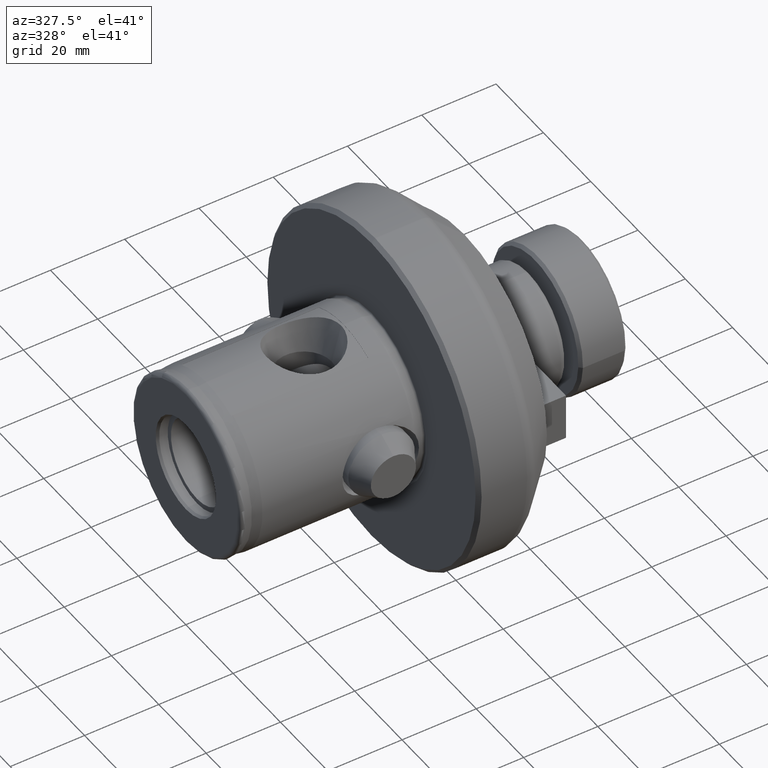
[diagram: clean part render]
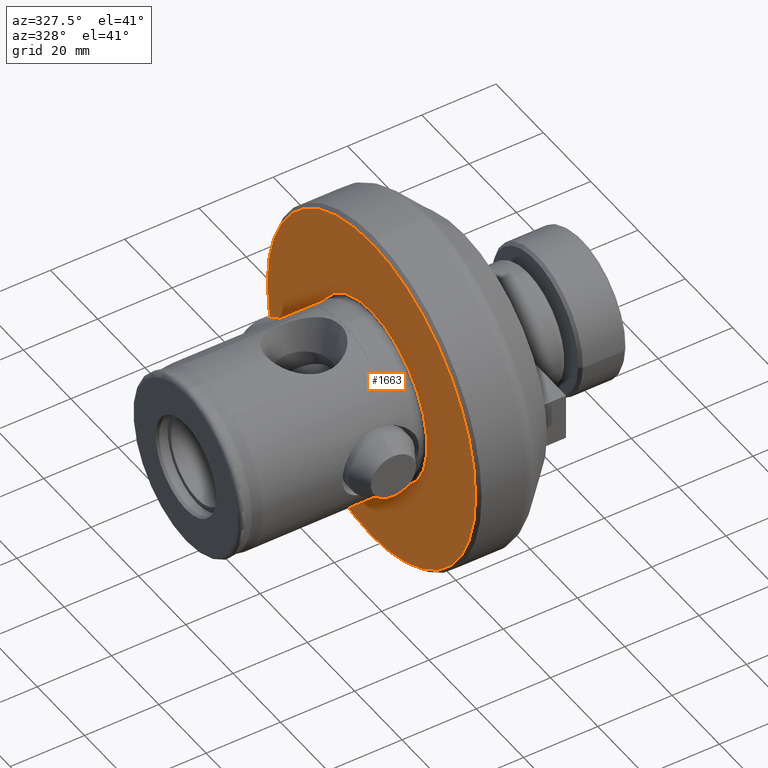
[diagram: same view with one face highlighted and labeled with its STEP entity id]
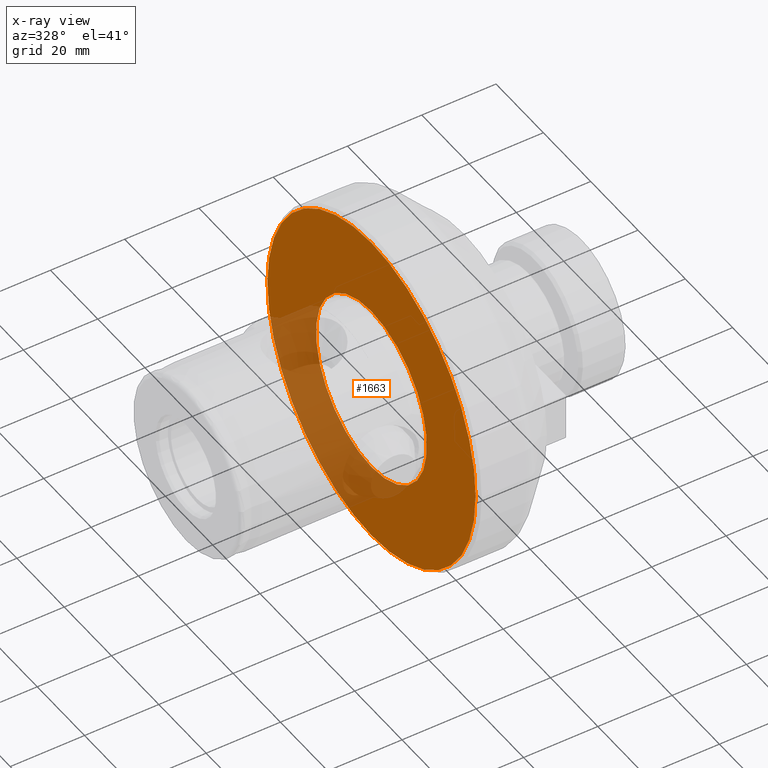
[diagram: x-ray of the same camera — body ghosted, the highlighted face saturated]
A machine part, auxiliary view. The second image highlights one B-rep face of the part: STEP entity #1663.
The next image is the same camera in x-ray: the body ghosted, the highlighted face saturated — about 25% of this face is hidden behind the body in this view.
In plain terms, the highlighted planar face has unit normal (1, 0, 0).
Its self-contained STEP definition (entity closure, byte-faithful):
#96 = ORIENTED_EDGE ( 'NONE', *, *, #2967, .T. ) ;
#132 = ORIENTED_EDGE ( 'NONE', *, *, #3378, .F. ) ;
#133 = ORIENTED_EDGE ( 'NONE', *, *, #3105, .F. ) ;
#143 = ORIENTED_EDGE ( 'NONE', *, *, #3076, .T. ) ;
#771 = CARTESIAN_POINT ( 'NONE',  ( 49.99999999999998600, 5.449678256205722000E-015, 44.00000000000000000 ) ) ;
#840 = CARTESIAN_POINT ( 'NONE',  ( 49.99999999999998600, 0.0000000000000000000, -44.00000000000000000 ) ) ;
#842 = CARTESIAN_POINT ( 'NONE',  ( 49.99999999999998600, 0.0000000000000000000, 23.43233259973981900 ) ) ;
#847 = CARTESIAN_POINT ( 'NONE',  ( 49.99999999999998600, 2.869633111482754700E-015, -23.43233259973981900 ) ) ;
#1663 = ADVANCED_FACE ( 'NONE', ( #4398, #4401 ), #5117, .F. ) ;
#2001 = EDGE_LOOP ( 'NONE', ( #143, #96 ) ) ;
#2011 = EDGE_LOOP ( 'NONE', ( #132, #133 ) ) ;
#2365 = CARTESIAN_POINT ( 'NONE',  ( 49.99999999999998600, 0.0000000000000000000, 0.0000000000000000000 ) ) ;
#2367 = DIRECTION ( 'NONE',  ( 0.0000000000000000000, 0.0000000000000000000, 1.000000000000000000 ) ) ;
#2368 = DIRECTION ( 'NONE',  ( -1.000000000000000000, -0.0000000000000000000, -0.0000000000000000000 ) ) ;
#2595 = CIRCLE ( 'NONE', #2836, 23.43233259973981900 ) ;
#2836 = AXIS2_PLACEMENT_3D ( 'NONE', #2365, #2368, #2367 ) ;
#2967 = EDGE_CURVE ( 'NONE', #8401, #8329, #4516, .T. ) ;
#3076 = EDGE_CURVE ( 'NONE', #8329, #8401, #5599, .T. ) ;
#3105 = EDGE_CURVE ( 'NONE', #8339, #8337, #5635, .T. ) ;
#3378 = EDGE_CURVE ( 'NONE', #8337, #8339, #2595, .T. ) ;
#4398 = FACE_BOUND ( 'NONE', #2011, .T. ) ;
#4401 = FACE_OUTER_BOUND ( 'NONE', #2001, .T. ) ;
#4516 = CIRCLE ( 'NONE', #6964, 44.00000000000000000 ) ;
#5112 = DIRECTION ( 'NONE',  ( 0.0000000000000000000, 0.0000000000000000000, -1.000000000000000000 ) ) ;
#5115 = CARTESIAN_POINT ( 'NONE',  ( 49.99999999999998600, 23.43233259973981900, 0.0000000000000000000 ) ) ;
#5117 = PLANE ( 'NONE',  #7014 ) ;
#5118 = DIRECTION ( 'NONE',  ( 1.000000000000000000, 0.0000000000000000000, 0.0000000000000000000 ) ) ;
#5230 = CARTESIAN_POINT ( 'NONE',  ( 49.99999999999998600, 0.0000000000000000000, 0.0000000000000000000 ) ) ;
#5231 = DIRECTION ( 'NONE',  ( -1.000000000000000000, -0.0000000000000000000, -0.0000000000000000000 ) ) ;
#5235 = DIRECTION ( 'NONE',  ( 0.0000000000000000000, 0.0000000000000000000, 1.000000000000000000 ) ) ;
#5599 = CIRCLE ( 'NONE', #6912, 44.00000000000000000 ) ;
#5635 = CIRCLE ( 'NONE', #6897, 23.43233259973981900 ) ;
#6706 = CARTESIAN_POINT ( 'NONE',  ( 49.99999999999998600, 0.0000000000000000000, 0.0000000000000000000 ) ) ;
#6707 = DIRECTION ( 'NONE',  ( -1.000000000000000000, -0.0000000000000000000, -0.0000000000000000000 ) ) ;
#6708 = DIRECTION ( 'NONE',  ( 0.0000000000000000000, 0.0000000000000000000, 1.000000000000000000 ) ) ;
#6790 = DIRECTION ( 'NONE',  ( 0.0000000000000000000, 0.0000000000000000000, 1.000000000000000000 ) ) ;
#6791 = DIRECTION ( 'NONE',  ( -1.000000000000000000, -0.0000000000000000000, -0.0000000000000000000 ) ) ;
#6795 = CARTESIAN_POINT ( 'NONE',  ( 49.99999999999998600, 0.0000000000000000000, 0.0000000000000000000 ) ) ;
#6897 = AXIS2_PLACEMENT_3D ( 'NONE', #6795, #6791, #6790 ) ;
#6912 = AXIS2_PLACEMENT_3D ( 'NONE', #6706, #6707, #6708 ) ;
#6964 = AXIS2_PLACEMENT_3D ( 'NONE', #5230, #5231, #5235 ) ;
#7014 = AXIS2_PLACEMENT_3D ( 'NONE', #5115, #5118, #5112 ) ;
#8329 = VERTEX_POINT ( 'NONE', #840 ) ;
#8337 = VERTEX_POINT ( 'NONE', #842 ) ;
#8339 = VERTEX_POINT ( 'NONE', #847 ) ;
#8401 = VERTEX_POINT ( 'NONE', #771 ) ;